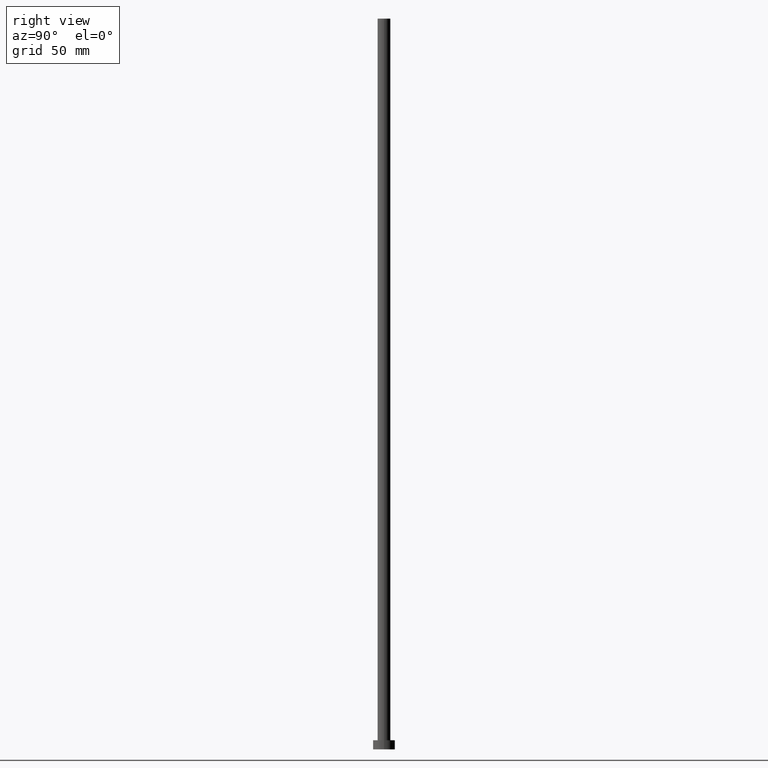
[diagram: clean part render]
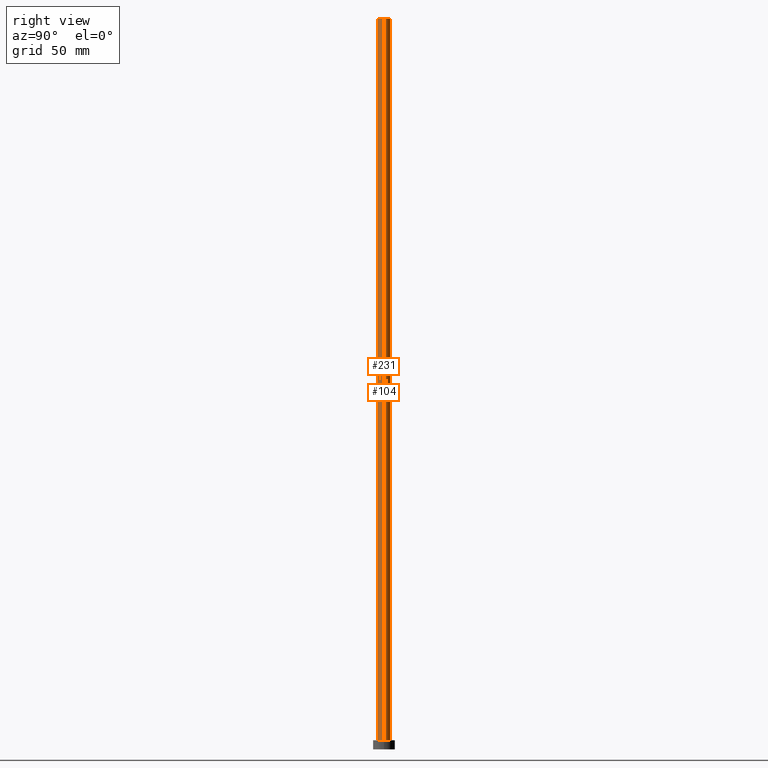
[diagram: same view with one multi-face feature highlighted, each face labeled with its STEP entity id]
A machine part, right view. The highlighted faces form ONE feature: a constant-radius fillet chain: 2 tangent blend faces with common blend radius 3.5 mm. The faces share edges in the B-rep.
Their STEP definitions:
[1] entity #231 (Cylinder):
#7 = FACE_OUTER_BOUND ( 'NONE', #215, .T. ) ;
#8 = DIRECTION ( 'NONE',  ( 1.000000000000000000, 0.000000000000000000, 0.000000000000000000 ) ) ;
#10 = EDGE_CURVE ( 'NONE', #234, #173, #197, .T. ) ;
#35 = VERTEX_POINT ( 'NONE', #131 ) ;
#48 = CARTESIAN_POINT ( 'NONE',  ( -3.500000000000000000, 0.000000000000000000, 400.0000000000000000 ) ) ;
#54 = AXIS2_PLACEMENT_3D ( 'NONE', #122, #239, #137 ) ;
#61 = ORIENTED_EDGE ( 'NONE', *, *, #216, .T. ) ;
#63 = LINE ( 'NONE', #217, #242 ) ;
#69 = DIRECTION ( 'NONE',  ( -0.000000000000000000, -0.000000000000000000, -1.000000000000000000 ) ) ;
#76 = DIRECTION ( 'NONE',  ( 1.000000000000000000, 0.000000000000000000, 0.000000000000000000 ) ) ;
#78 = ORIENTED_EDGE ( 'NONE', *, *, #180, .T. ) ;
#88 = DIRECTION ( 'NONE',  ( 0.000000000000000000, 0.000000000000000000, 1.000000000000000000 ) ) ;
#112 = DIRECTION ( 'NONE',  ( 0.000000000000000000, 0.000000000000000000, 1.000000000000000000 ) ) ;
#114 = CARTESIAN_POINT ( 'NONE',  ( 0.000000000000000000, 0.000000000000000000, 400.0000000000000000 ) ) ;
#118 = CYLINDRICAL_SURFACE ( 'NONE', #54, 3.500000000000000000 ) ;
#120 = DIRECTION ( 'NONE',  ( -0.000000000000000000, -0.000000000000000000, -1.000000000000000000 ) ) ;
#122 = CARTESIAN_POINT ( 'NONE',  ( 0.000000000000000000, 0.000000000000000000, 400.0000000000000000 ) ) ;
#123 = AXIS2_PLACEMENT_3D ( 'NONE', #114, #112, #76 ) ;
#124 = LINE ( 'NONE', #178, #158 ) ;
#131 = CARTESIAN_POINT ( 'NONE',  ( -3.500000000000000000, 0.000000000000000000, 5.000000000000000000 ) ) ;
#137 = DIRECTION ( 'NONE',  ( -1.000000000000000000, 0.000000000000000000, 0.000000000000000000 ) ) ;
#142 = CIRCLE ( 'NONE', #177, 3.500000000000000000 ) ;
#158 = VECTOR ( 'NONE', #69, 1000.000000000000000 ) ;
#173 = VERTEX_POINT ( 'NONE', #204 ) ;
#177 = AXIS2_PLACEMENT_3D ( 'NONE', #198, #88, #8 ) ;
#178 = CARTESIAN_POINT ( 'NONE',  ( -3.500000000000000000, 0.000000000000000000, 400.0000000000000000 ) ) ;
#180 = EDGE_CURVE ( 'NONE', #35, #212, #142, .T. ) ;
#186 = ORIENTED_EDGE ( 'NONE', *, *, #10, .F. ) ;
#197 = CIRCLE ( 'NONE', #123, 3.500000000000000000 ) ;
#198 = CARTESIAN_POINT ( 'NONE',  ( 0.000000000000000000, 0.000000000000000000, 5.000000000000000000 ) ) ;
#204 = CARTESIAN_POINT ( 'NONE',  ( 3.500000000000000000, 4.286263797015735609E-16, 400.0000000000000000 ) ) ;
#208 = ORIENTED_EDGE ( 'NONE', *, *, #248, .F. ) ;
#212 = VERTEX_POINT ( 'NONE', #241 ) ;
#215 = EDGE_LOOP ( 'NONE', ( #208, #186, #61, #78 ) ) ;
#216 = EDGE_CURVE ( 'NONE', #234, #35, #124, .T. ) ;
#217 = CARTESIAN_POINT ( 'NONE',  ( 3.500000000000000000, 4.286263797015735609E-16, 400.0000000000000000 ) ) ;
#231 = ADVANCED_FACE ( 'NONE', ( #7 ), #118, .T. ) ;
#234 = VERTEX_POINT ( 'NONE', #48 ) ;
#239 = DIRECTION ( 'NONE',  ( -0.000000000000000000, -0.000000000000000000, -1.000000000000000000 ) ) ;
#241 = CARTESIAN_POINT ( 'NONE',  ( 3.500000000000000000, 4.286263797015735609E-16, 5.000000000000000000 ) ) ;
#242 = VECTOR ( 'NONE', #120, 1000.000000000000000 ) ;
#248 = EDGE_CURVE ( 'NONE', #173, #212, #63, .T. ) ;
[2] entity #104 (Cylinder):
#9 = AXIS2_PLACEMENT_3D ( 'NONE', #140, #64, #219 ) ;
#23 = ORIENTED_EDGE ( 'NONE', *, *, #248, .T. ) ;
#35 = VERTEX_POINT ( 'NONE', #131 ) ;
#36 = AXIS2_PLACEMENT_3D ( 'NONE', #85, #238, #87 ) ;
#41 = CARTESIAN_POINT ( 'NONE',  ( 0.000000000000000000, 0.000000000000000000, 400.0000000000000000 ) ) ;
#48 = CARTESIAN_POINT ( 'NONE',  ( -3.500000000000000000, 0.000000000000000000, 400.0000000000000000 ) ) ;
#63 = LINE ( 'NONE', #217, #242 ) ;
#64 = DIRECTION ( 'NONE',  ( -0.000000000000000000, -0.000000000000000000, -1.000000000000000000 ) ) ;
#66 = EDGE_CURVE ( 'NONE', #173, #234, #227, .T. ) ;
#67 = CYLINDRICAL_SURFACE ( 'NONE', #9, 3.500000000000000000 ) ;
#69 = DIRECTION ( 'NONE',  ( -0.000000000000000000, -0.000000000000000000, -1.000000000000000000 ) ) ;
#82 = DIRECTION ( 'NONE',  ( 0.000000000000000000, 0.000000000000000000, 1.000000000000000000 ) ) ;
#85 = CARTESIAN_POINT ( 'NONE',  ( 0.000000000000000000, 0.000000000000000000, 5.000000000000000000 ) ) ;
#87 = DIRECTION ( 'NONE',  ( 1.000000000000000000, 0.000000000000000000, 0.000000000000000000 ) ) ;
#102 = ORIENTED_EDGE ( 'NONE', *, *, #244, .T. ) ;
#104 = ADVANCED_FACE ( 'NONE', ( #202 ), #67, .T. ) ;
#116 = AXIS2_PLACEMENT_3D ( 'NONE', #41, #82, #235 ) ;
#120 = DIRECTION ( 'NONE',  ( -0.000000000000000000, -0.000000000000000000, -1.000000000000000000 ) ) ;
#124 = LINE ( 'NONE', #178, #158 ) ;
#127 = ORIENTED_EDGE ( 'NONE', *, *, #216, .F. ) ;
#131 = CARTESIAN_POINT ( 'NONE',  ( -3.500000000000000000, 0.000000000000000000, 5.000000000000000000 ) ) ;
#140 = CARTESIAN_POINT ( 'NONE',  ( 0.000000000000000000, 0.000000000000000000, 400.0000000000000000 ) ) ;
#158 = VECTOR ( 'NONE', #69, 1000.000000000000000 ) ;
#173 = VERTEX_POINT ( 'NONE', #204 ) ;
#178 = CARTESIAN_POINT ( 'NONE',  ( -3.500000000000000000, 0.000000000000000000, 400.0000000000000000 ) ) ;
#202 = FACE_OUTER_BOUND ( 'NONE', #233, .T. ) ;
#204 = CARTESIAN_POINT ( 'NONE',  ( 3.500000000000000000, 4.286263797015735609E-16, 400.0000000000000000 ) ) ;
#212 = VERTEX_POINT ( 'NONE', #241 ) ;
#216 = EDGE_CURVE ( 'NONE', #234, #35, #124, .T. ) ;
#217 = CARTESIAN_POINT ( 'NONE',  ( 3.500000000000000000, 4.286263797015735609E-16, 400.0000000000000000 ) ) ;
#219 = DIRECTION ( 'NONE',  ( -1.000000000000000000, 0.000000000000000000, 0.000000000000000000 ) ) ;
#224 = CIRCLE ( 'NONE', #36, 3.500000000000000000 ) ;
#227 = CIRCLE ( 'NONE', #116, 3.500000000000000000 ) ;
#233 = EDGE_LOOP ( 'NONE', ( #251, #23, #102, #127 ) ) ;
#234 = VERTEX_POINT ( 'NONE', #48 ) ;
#235 = DIRECTION ( 'NONE',  ( 1.000000000000000000, 0.000000000000000000, 0.000000000000000000 ) ) ;
#238 = DIRECTION ( 'NONE',  ( 0.000000000000000000, 0.000000000000000000, 1.000000000000000000 ) ) ;
#241 = CARTESIAN_POINT ( 'NONE',  ( 3.500000000000000000, 4.286263797015735609E-16, 5.000000000000000000 ) ) ;
#242 = VECTOR ( 'NONE', #120, 1000.000000000000000 ) ;
#244 = EDGE_CURVE ( 'NONE', #212, #35, #224, .T. ) ;
#248 = EDGE_CURVE ( 'NONE', #173, #212, #63, .T. ) ;
#251 = ORIENTED_EDGE ( 'NONE', *, *, #66, .F. ) ;